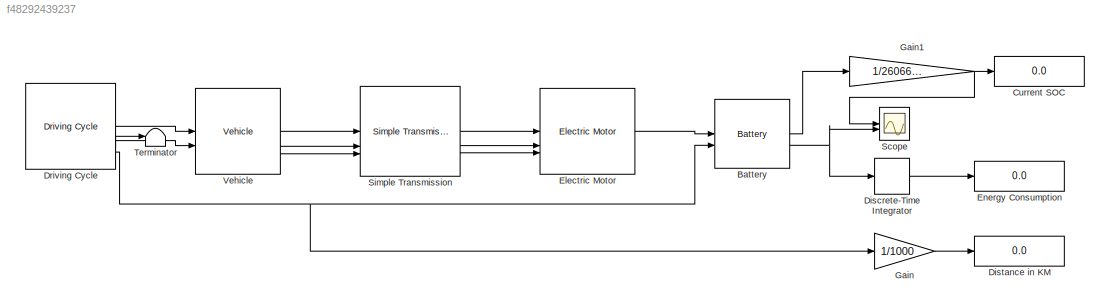
MODEL slx_f48292439237
KIND model
CONFIG AbsTol = auto
CONFIG EnableMultiTasking = off
CONFIG FixedStep = auto
CONFIG MaxStep = auto
CONFIG MinStep = auto
CONFIG RelTol = 1e-3
CONFIG SampleTimeConstraint = Unconstrained
CONFIG SolverName = VariableStepAuto
CONFIG StartTime = 0.0
CONFIG StopTime = 1220
BLOCK [Reference] Battery  REF=qss_tb_library/Energy Buffer/Battery  (lib defined in mdl_a75e96b0ff2a, mdl_aad2a3137e65)
  SourceBlock = qss_tb_library/Energy Buffer/Battery
  SourceType = Battery
  Tag = battery
BLOCK [Display] Current SOC
  Decimation = 1
BLOCK [DiscreteIntegrator] Discrete-Time Integrator
  ICPrevOutput = DiscIntNeverNeededParam
  ICPrevScaledInput = DiscIntNeverNeededParam
  InitialConditionSetting = Auto
  SampleTime = -1
BLOCK [Display] Distance in KM
  Decimation = 1
BLOCK [Reference] Driving Cycle  REF=qss_tb_library/Driving Cycle/Driving Cycle  (lib defined in mdl_a75e96b0ff2a, mdl_aad2a3137e65)
  SourceBlock = qss_tb_library/Driving Cycle/Driving Cycle
  SourceType = Driving Cycle
  Tag = cycle
BLOCK [Reference] Electric Motor  REF=qss_tb_library/Energy Converter/Electric Motor  (lib defined in mdl_a75e96b0ff2a, mdl_aad2a3137e65)
  SourceBlock = qss_tb_library/Energy Converter/Electric Motor
  SourceType = Electric Motor
BLOCK [Display] Energy Consumption
  Decimation = 1
BLOCK [Gain] Gain
  Gain = 1/1000
BLOCK [Gain] Gain1
  Gain = 1/260665.2
BLOCK [Scope] Scope
  Floating = off
  NumInputPorts = 2
  ScopeSpecificationString = Simulink.scopes.TimeScopeBlockCfg('CurrentConfiguration', extmgr.ConfigurationSet(extmgr.Configuration('Core','General UI',true),extmgr.Configuration('Core','Source UI',true),extmgr.Configuration('Sources','WiredSimulink',true),extmgr.Configuration('Visuals','Time Domain',true,'SerializedDisplays',{struct('MinYLimReal','211899.84243','MaxYLimReal','231943.57306','YLabelReal','','MinYLimMag','21189...<+1975ch>
BLOCK [Reference] Simple Transmission  REF=qss_tb_library/Gear System/Simple Transmission  (lib defined in mdl_a75e96b0ff2a, mdl_aad2a3137e65)
  SourceBlock = qss_tb_library/Gear System/Simple Transmission
  SourceType = Simple Transmission
  Tag = simple transmission
BLOCK [Terminator] Terminator
BLOCK [Reference] Vehicle  REF=qss_tb_library/Vehicle/Vehicle  (lib defined in mdl_a75e96b0ff2a, mdl_aad2a3137e65)
  SourceBlock = qss_tb_library/Vehicle/Vehicle
  SourceType = Vehicle
  Tag = vehicle
LINE Battery:1 -> Gain1:1
NET Battery:2 -> Discrete-Time Integrator:1, Scope:2
LINE Discrete-Time Integrator:1 -> Energy Consumption:1
LINE Driving Cycle:1 -> Vehicle:1
LINE Driving Cycle:2 -> Vehicle:2
LINE Driving Cycle:3 -> Terminator:1
NET Driving Cycle:4 -> Battery:2, Gain:1
LINE Electric Motor:1 -> Battery:1
NET Gain1:1 -> Current SOC:1, Scope:1
LINE Gain:1 -> Distance in KM:1
LINE Simple Transmission:1 -> Electric Motor:1
LINE Simple Transmission:2 -> Electric Motor:2
LINE Simple Transmission:3 -> Electric Motor:3
LINE Vehicle:1 -> Simple Transmission:1
LINE Vehicle:2 -> Simple Transmission:2
LINE Vehicle:3 -> Simple Transmission:3
note: NET lines group one-source signal fan-out (src -> all destinations, sorted); 1:1 wires keep LINE
